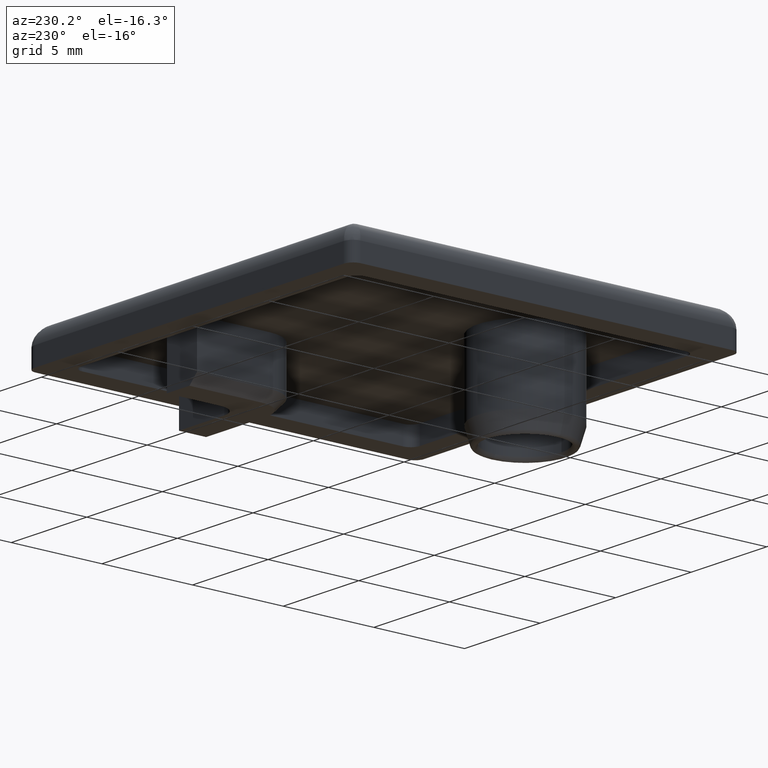
[diagram: clean part render]
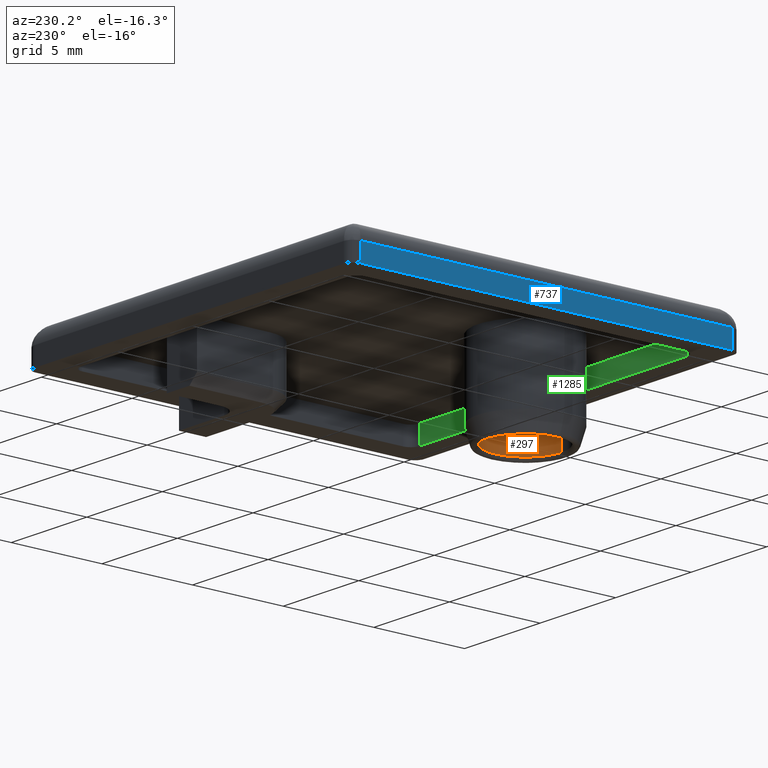
[diagram: same view with three faces highlighted in distinct colors, each labeled with its STEP entity id]
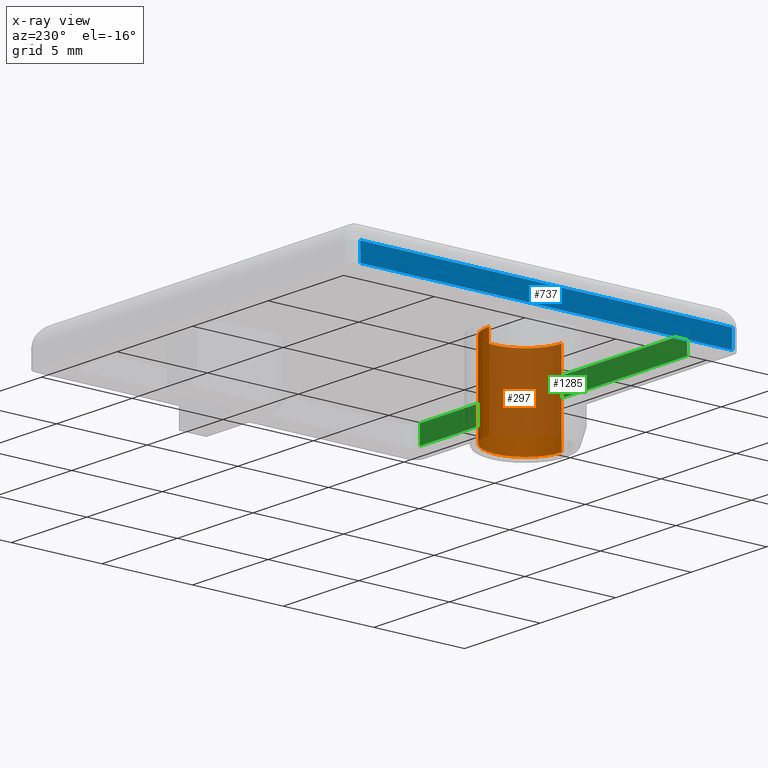
[diagram: x-ray of the same camera — body ghosted, the three highlighted faces saturated]
A machine part, auxiliary view with three faces highlighted in distinct colors.
The next image is the same camera in x-ray (body ghosted, the three faces saturated) — at least one of them is partly hidden behind the body in this view.
Their STEP definitions:

[orange] entity #297 — the highlighted cylindrical surface (partial cylindrical patch) has radius 2 mm, axis along (0, 0, 1).
#221=CARTESIAN_POINT('',(6.353553390593275,8.353553390593270,-3.800000000000003));
#222=VERTEX_POINT('',#221);
#238=CARTESIAN_POINT('',(8.353553390593275,6.353553390593270,-3.800000000000003));
#239=VERTEX_POINT('',#238);
#247=CARTESIAN_POINT('',(6.353553390593275,6.353553390593270,-3.800000000000003));
#248=DIRECTION('',(0.0,0.0,-1.0));
#249=DIRECTION('',(1.0,0.0,0.0));
#250=AXIS2_PLACEMENT_3D('',#247,#248,#249);
#251=CIRCLE('',#250,2.0);
#252=EDGE_CURVE('',#222,#239,#251,.T.);
#257=CARTESIAN_POINT('',(6.353553390593275,6.353553390593270,-3.800000010000002));
#258=DIRECTION('',(0.0,0.0,1.0));
#259=DIRECTION('',(-1.0,0.0,0.0));
#260=AXIS2_PLACEMENT_3D('',#257,#258,#259);
#261=CYLINDRICAL_SURFACE('',#260,2.0);
#262=ORIENTED_EDGE('',*,*,#252,.T.);
#263=CARTESIAN_POINT('',(6.353553390593275,4.353553390593271,-3.800000000000003));
#264=VERTEX_POINT('',#263);
#265=CARTESIAN_POINT('',(6.353553390593275,6.353553390593270,-3.800000000000003));
#266=DIRECTION('',(0.0,0.0,-1.0));
#267=DIRECTION('',(1.0,0.0,0.0));
#268=AXIS2_PLACEMENT_3D('',#265,#266,#267);
#269=CIRCLE('',#268,2.0);
#270=EDGE_CURVE('',#239,#264,#269,.T.);
#271=ORIENTED_EDGE('',*,*,#270,.T.);
#272=CARTESIAN_POINT('',(6.353553390593275,4.353553390593271,1.000000000000001));
#273=VERTEX_POINT('',#272);
#274=CARTESIAN_POINT('',(6.353553390593275,4.353553390593271,-3.800000000000003));
#275=DIRECTION('',(0.0,0.0,1.0));
#276=VECTOR('',#275,4.800000000000004);
#277=LINE('',#274,#276);
#278=EDGE_CURVE('',#264,#273,#277,.T.);
#279=ORIENTED_EDGE('',*,*,#278,.T.);
#280=CARTESIAN_POINT('',(6.353553390593275,8.353553390593270,1.000000000000001));
#281=VERTEX_POINT('',#280);
#282=CARTESIAN_POINT('',(6.353553390593275,6.353553390593270,1.000000000000001));
#283=DIRECTION('',(0.0,0.0,-1.0));
#284=DIRECTION('',(0.0,1.0,0.0));
#285=AXIS2_PLACEMENT_3D('',#282,#283,#284);
#286=CIRCLE('',#285,2.0);
#287=EDGE_CURVE('',#281,#273,#286,.T.);
#288=ORIENTED_EDGE('',*,*,#287,.F.);
#289=CARTESIAN_POINT('',(6.353553390593275,8.353553390593270,-3.800000000000003));
#290=DIRECTION('',(0.0,0.0,1.0));
#291=VECTOR('',#290,4.800000000000004);
#292=LINE('',#289,#291);
#293=EDGE_CURVE('',#222,#281,#292,.T.);
#294=ORIENTED_EDGE('',*,*,#293,.F.);
#295=EDGE_LOOP('',(#262,#271,#279,#288,#294));
#296=FACE_OUTER_BOUND('',#295,.T.);
#297=ADVANCED_FACE('',(#296),#261,.F.);

[blue] entity #737 — the highlighted planar face has unit normal (-1, 0, 0).
#679=CARTESIAN_POINT('',(-0.146446609406719,20.853553390593273,0.0));
#680=VERTEX_POINT('',#679);
#681=CARTESIAN_POINT('',(-0.146446609406719,20.853553390593273,1.0));
#682=VERTEX_POINT('',#681);
#683=CARTESIAN_POINT('',(-0.146446609406719,20.853553390593273,0.0));
#684=DIRECTION('',(0.0,0.0,1.0));
#685=VECTOR('',#684,1.0);
#686=LINE('',#683,#685);
#687=EDGE_CURVE('',#680,#682,#686,.T.);
#707=CARTESIAN_POINT('',(-0.146446609406719,21.878553390593272,-0.050000000000000));
#708=DIRECTION('',(-1.0,0.0,0.0));
#709=DIRECTION('',(0.0,-1.0,0.0));
#710=AXIS2_PLACEMENT_3D('',#707,#708,#709);
#711=PLANE('',#710);
#712=CARTESIAN_POINT('',(-0.146446609406726,0.353553390593274,0.0));
#713=VERTEX_POINT('',#712);
#714=CARTESIAN_POINT('',(-0.146446609406726,0.353553390593274,1.0));
#715=VERTEX_POINT('',#714);
#716=CARTESIAN_POINT('',(-0.146446609406726,0.353553390593274,0.0));
#717=DIRECTION('',(0.0,0.0,1.0));
#718=VECTOR('',#717,1.0);
#719=LINE('',#716,#718);
#720=EDGE_CURVE('',#713,#715,#719,.T.);
#721=ORIENTED_EDGE('',*,*,#720,.T.);
#722=CARTESIAN_POINT('',(-0.146446609406719,0.353553390593273,1.0));
#723=DIRECTION('',(0.0,1.0,0.0));
#724=VECTOR('',#723,20.500000000000000);
#725=LINE('',#722,#724);
#726=EDGE_CURVE('',#715,#682,#725,.T.);
#727=ORIENTED_EDGE('',*,*,#726,.T.);
#728=ORIENTED_EDGE('',*,*,#687,.F.);
#729=CARTESIAN_POINT('',(-0.146446609406719,20.853553390593273,0.0));
#730=DIRECTION('',(0.0,-1.0,0.0));
#731=VECTOR('',#730,20.500000000000000);
#732=LINE('',#729,#731);
#733=EDGE_CURVE('',#680,#713,#732,.T.);
#734=ORIENTED_EDGE('',*,*,#733,.T.);
#735=EDGE_LOOP('',(#721,#727,#728,#734));
#736=FACE_OUTER_BOUND('',#735,.T.);
#737=ADVANCED_FACE('',(#736),#711,.T.);

[green] entity #1285 — the highlighted planar face has unit normal (0, -1, 0).
#390=CARTESIAN_POINT('',(19.453553390593274,1.253553390593270,1.0));
#391=VERTEX_POINT('',#390);
#399=CARTESIAN_POINT('',(1.753553390593276,1.253553390593270,1.0));
#400=VERTEX_POINT('',#399);
#401=CARTESIAN_POINT('',(19.453553390593274,1.253553390593270,1.0));
#402=DIRECTION('',(-1.0,0.0,0.0));
#403=VECTOR('',#402,17.699999999999999);
#404=LINE('',#401,#403);
#405=EDGE_CURVE('',#391,#400,#404,.T.);
#808=CARTESIAN_POINT('',(19.453553390593274,1.253553390593270,0.0));
#809=VERTEX_POINT('',#808);
#810=CARTESIAN_POINT('',(1.753553390593276,1.253553390593270,0.0));
#811=VERTEX_POINT('',#810);
#812=CARTESIAN_POINT('',(19.453553390593274,1.253553390593270,0.0));
#813=DIRECTION('',(-1.0,0.0,0.0));
#814=VECTOR('',#813,17.699999999999999);
#815=LINE('',#812,#814);
#816=EDGE_CURVE('',#809,#811,#815,.T.);
#1253=CARTESIAN_POINT('',(19.453553390593274,1.253553390593270,1.0));
#1254=DIRECTION('',(0.0,0.0,-1.0));
#1255=VECTOR('',#1254,1.0);
#1256=LINE('',#1253,#1255);
#1257=EDGE_CURVE('',#391,#809,#1256,.T.);
#1269=CARTESIAN_POINT('',(0.868553390593275,1.253553390593270,1.050000000000000));
#1270=DIRECTION('',(0.0,-1.0,0.0));
#1271=DIRECTION('',(0.0,0.0,-1.0));
#1272=AXIS2_PLACEMENT_3D('',#1269,#1270,#1271);
#1273=PLANE('',#1272);
#1274=ORIENTED_EDGE('',*,*,#816,.T.);
#1275=CARTESIAN_POINT('',(1.753553390593276,1.253553390593270,1.0));
#1276=DIRECTION('',(0.0,0.0,-1.0));
#1277=VECTOR('',#1276,1.0);
#1278=LINE('',#1275,#1277);
#1279=EDGE_CURVE('',#400,#811,#1278,.T.);
#1280=ORIENTED_EDGE('',*,*,#1279,.F.);
#1281=ORIENTED_EDGE('',*,*,#405,.F.);
#1282=ORIENTED_EDGE('',*,*,#1257,.T.);
#1283=EDGE_LOOP('',(#1274,#1280,#1281,#1282));
#1284=FACE_OUTER_BOUND('',#1283,.T.);
#1285=ADVANCED_FACE('',(#1284),#1273,.F.);